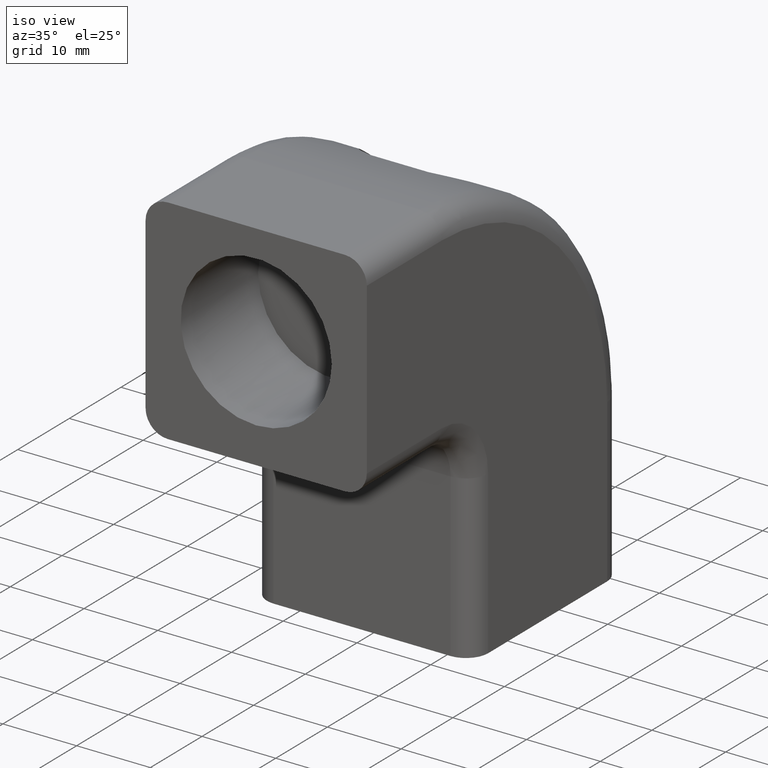
[diagram: clean part render]
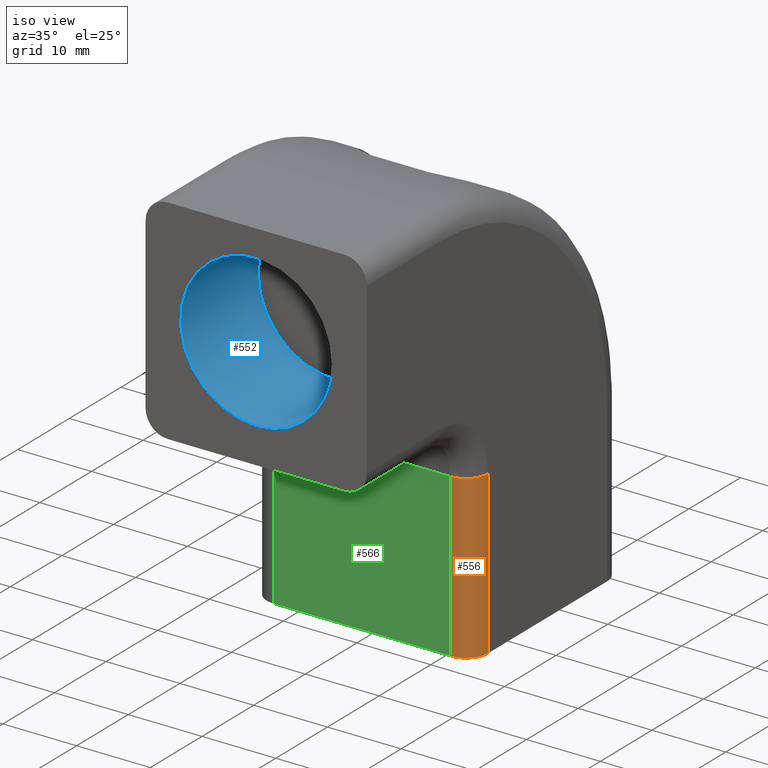
[diagram: same view with three faces highlighted in distinct colors, each labeled with its STEP entity id]
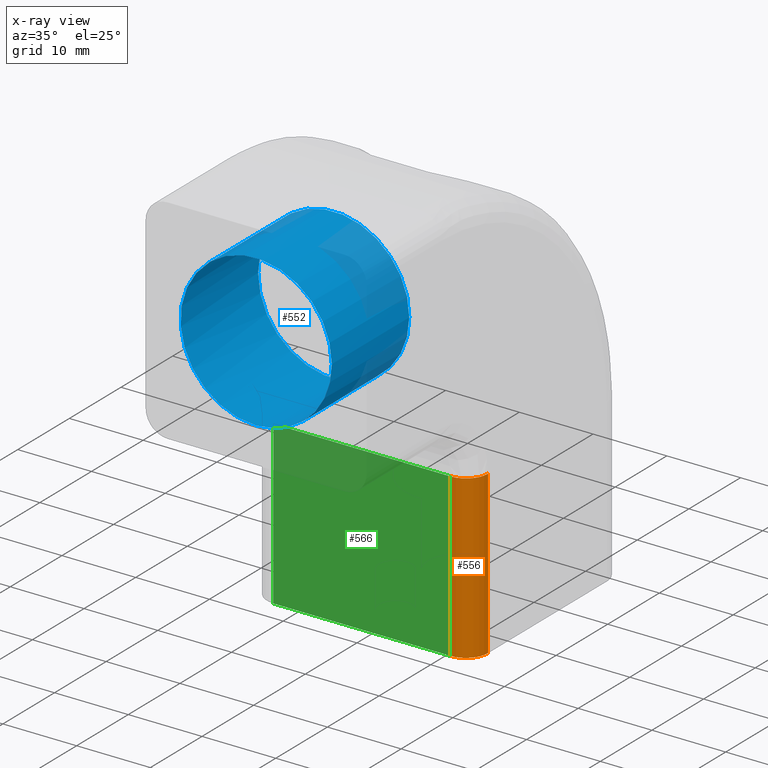
[diagram: x-ray of the same camera — body ghosted, the three highlighted faces saturated]
A machine part, iso view with three faces highlighted in distinct colors.
The next image is the same camera in x-ray (body ghosted, the three faces saturated) — at least one of them is partly hidden behind the body in this view.
Their STEP definitions:

[orange] entity #556 — the highlighted cylindrical surface (edge-blend (fillet) strip) has radius 3 mm, axis along (0, 0, 1).
#49=LINE('',#939,#87);
#50=LINE('',#942,#88);
#87=VECTOR('',#747,22.);
#88=VECTOR('',#750,22.);
#113=CYLINDRICAL_SURFACE('',#616,3.);
#138=FACE_OUTER_BOUND('',#182,.T.);
#182=EDGE_LOOP('',(#431,#432,#433,#434));
#220=CIRCLE('',#612,3.);
#224=CIRCLE('',#617,3.);
#270=VERTEX_POINT('',#922);
#271=VERTEX_POINT('',#924);
#277=VERTEX_POINT('',#938);
#278=VERTEX_POINT('',#940);
#328=EDGE_CURVE('',#271,#270,#220,.T.);
#335=EDGE_CURVE('',#270,#277,#49,.T.);
#336=EDGE_CURVE('',#278,#277,#224,.T.);
#337=EDGE_CURVE('',#271,#278,#50,.T.);
#431=ORIENTED_EDGE('',*,*,#328,.T.);
#432=ORIENTED_EDGE('',*,*,#335,.T.);
#433=ORIENTED_EDGE('',*,*,#336,.F.);
#434=ORIENTED_EDGE('',*,*,#337,.F.);
#556=ADVANCED_FACE('',(#138),#113,.T.);
#612=AXIS2_PLACEMENT_3D('',#925,#734,#735);
#616=AXIS2_PLACEMENT_3D('',#937,#745,#746);
#617=AXIS2_PLACEMENT_3D('',#941,#748,#749);
#734=DIRECTION('center_axis',(0.,0.,1.));
#735=DIRECTION('ref_axis',(0.,-1.,0.));
#745=DIRECTION('center_axis',(0.,0.,1.));
#746=DIRECTION('ref_axis',(0.,-1.,0.));
#747=DIRECTION('',(0.,0.,1.));
#748=DIRECTION('center_axis',(0.,0.,1.));
#749=DIRECTION('ref_axis',(0.,-1.,0.));
#750=DIRECTION('',(0.,0.,1.));
#922=CARTESIAN_POINT('',(15.,-16.0049999999974,9.800236E-16));
#924=CARTESIAN_POINT('',(12.,-19.0049999999974,1.163721E-15));
#925=CARTESIAN_POINT('Origin',(12.,-16.0049999999974,9.800236E-16));
#937=CARTESIAN_POINT('Origin',(12.,-16.0049999999974,9.800236E-16));
#938=CARTESIAN_POINT('',(15.,-16.0049999999974,22.));
#939=CARTESIAN_POINT('',(15.,-16.0049999999974,9.800236E-16));
#940=CARTESIAN_POINT('',(12.,-19.0049999999974,22.));
#941=CARTESIAN_POINT('Origin',(12.,-16.0049999999974,22.));
#942=CARTESIAN_POINT('',(12.,-19.0049999999974,1.163721E-15));

[blue] entity #552 — the highlighted cylindrical surface (bore or boss wall) has radius 10.25 mm, axis along (0, -1, 0).
#24=FACE_BOUND('',#175,.T.);
#111=CYLINDRICAL_SURFACE('',#602,10.2500000000002);
#134=FACE_OUTER_BOUND('',#174,.T.);
#174=EDGE_LOOP('',(#406));
#175=EDGE_LOOP('',(#407));
#201=CIRCLE('',#578,10.2500000000002);
#214=CIRCLE('',#603,10.2500000000002);
#239=VERTEX_POINT('',#826);
#258=VERTEX_POINT('',#895);
#291=EDGE_CURVE('',#239,#239,#201,.T.);
#315=EDGE_CURVE('',#258,#258,#214,.T.);
#406=ORIENTED_EDGE('',*,*,#291,.T.);
#407=ORIENTED_EDGE('',*,*,#315,.T.);
#552=ADVANCED_FACE('',(#134,#24),#111,.F.);
#578=AXIS2_PLACEMENT_3D('',#827,#650,#651);
#602=AXIS2_PLACEMENT_3D('',#894,#707,#708);
#603=AXIS2_PLACEMENT_3D('',#896,#709,#710);
#650=DIRECTION('center_axis',(0.,1.,0.));
#651=DIRECTION('ref_axis',(-1.,0.,0.));
#707=DIRECTION('center_axis',(0.,-1.,0.));
#708=DIRECTION('ref_axis',(0.,0.,1.));
#709=DIRECTION('center_axis',(0.,-1.,0.));
#710=DIRECTION('ref_axis',(0.,0.,1.));
#826=CARTESIAN_POINT('',(10.2500000000002,-24.4999999999974,43.125));
#827=CARTESIAN_POINT('Origin',(-5.75584E-16,-24.4999999999974,43.125));
#894=CARTESIAN_POINT('Origin',(-5.75584E-16,-39.5049999999974,43.125));
#895=CARTESIAN_POINT('',(-5.75584E-16,-39.5049999999974,32.8749999999998));
#896=CARTESIAN_POINT('Origin',(-5.75584E-16,-39.5049999999974,43.125));

[green] entity #566 — the highlighted planar face has unit normal (0, -1, 0).
#46=LINE('',#927,#84);
#50=LINE('',#942,#88);
#57=LINE('',#963,#95);
#64=LINE('',#985,#102);
#84=VECTOR('',#736,24.);
#88=VECTOR('',#750,22.);
#95=VECTOR('',#771,22.);
#102=VECTOR('',#798,24.);
#148=FACE_OUTER_BOUND('',#192,.T.);
#192=EDGE_LOOP('',(#475,#476,#477,#478));
#271=VERTEX_POINT('',#924);
#272=VERTEX_POINT('',#926);
#278=VERTEX_POINT('',#940);
#285=VERTEX_POINT('',#962);
#329=EDGE_CURVE('',#271,#272,#46,.T.);
#337=EDGE_CURVE('',#271,#278,#50,.T.);
#347=EDGE_CURVE('',#272,#285,#57,.T.);
#359=EDGE_CURVE('',#278,#285,#64,.T.);
#475=ORIENTED_EDGE('',*,*,#329,.F.);
#476=ORIENTED_EDGE('',*,*,#337,.T.);
#477=ORIENTED_EDGE('',*,*,#359,.T.);
#478=ORIENTED_EDGE('',*,*,#347,.F.);
#536=PLANE('',#637);
#566=ADVANCED_FACE('',(#148),#536,.T.);
#637=AXIS2_PLACEMENT_3D('',#988,#803,#804);
#736=DIRECTION('',(-1.,0.,0.));
#750=DIRECTION('',(0.,0.,1.));
#771=DIRECTION('',(0.,0.,1.));
#798=DIRECTION('',(-1.,0.,0.));
#803=DIRECTION('center_axis',(0.,-1.,0.));
#804=DIRECTION('ref_axis',(0.,0.,-1.));
#924=CARTESIAN_POINT('',(12.,-19.0049999999974,1.163721E-15));
#926=CARTESIAN_POINT('',(-12.,-19.0049999999974,1.163721E-15));
#927=CARTESIAN_POINT('',(12.,-19.0049999999974,1.163721E-15));
#940=CARTESIAN_POINT('',(12.,-19.0049999999974,22.));
#942=CARTESIAN_POINT('',(12.,-19.0049999999974,1.163721E-15));
#962=CARTESIAN_POINT('',(-12.,-19.0049999999974,22.));
#963=CARTESIAN_POINT('',(-12.,-19.0049999999974,1.163721E-15));
#985=CARTESIAN_POINT('',(12.,-19.0049999999974,22.));
#988=CARTESIAN_POINT('Origin',(15.,-19.0049999999974,1.163721E-15));